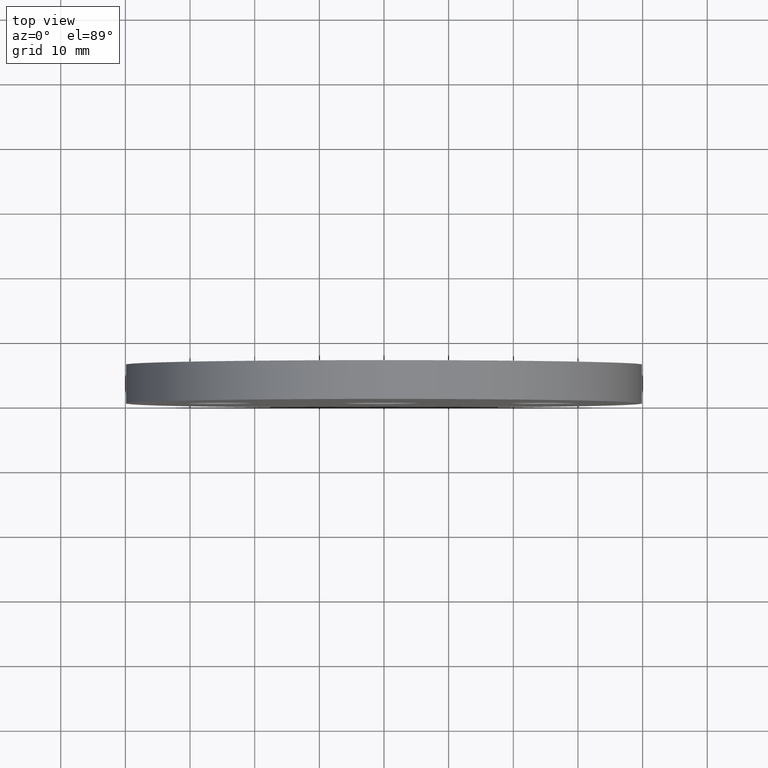
[diagram: clean part render]
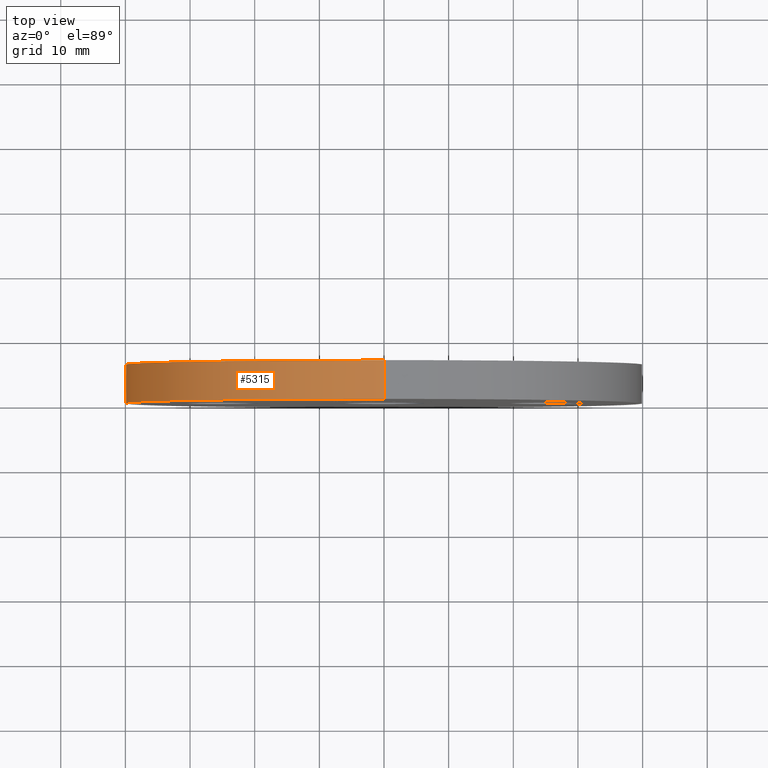
[diagram: same view with one face highlighted and labeled with its STEP entity id]
A machine part, top view. The second image highlights one B-rep face of the part: STEP entity #5315.
In plain terms, the highlighted cylindrical surface (partial cylindrical patch) has radius 40 mm, axis along (-0, -1, -0).
Its self-contained STEP definition (entity closure, byte-faithful):
#169 = DIRECTION ( 'NONE',  ( -0.0000000000000000000, -1.000000000000000000, -0.0000000000000000000 ) ) ;
#249 = CIRCLE ( 'NONE', #12444, 40.00000000000000000 ) ;
#324 = DIRECTION ( 'NONE',  ( -0.0000000000000000000, -1.000000000000000000, -0.0000000000000000000 ) ) ;
#823 = EDGE_CURVE ( 'NONE', #11749, #12769, #4870, .T. ) ;
#1136 = CIRCLE ( 'NONE', #7029, 40.00000000000000000 ) ;
#1496 = DIRECTION ( 'NONE',  ( 0.0000000000000000000, 0.0000000000000000000, -1.000000000000000000 ) ) ;
#1571 = EDGE_CURVE ( 'NONE', #2105, #12769, #1136, .T. ) ;
#2094 = ORIENTED_EDGE ( 'NONE', *, *, #1571, .T. ) ;
#2105 = VERTEX_POINT ( 'NONE', #5986 ) ;
#3895 = CYLINDRICAL_SURFACE ( 'NONE', #4485, 40.00000000000000000 ) ;
#4125 = VERTEX_POINT ( 'NONE', #11720 ) ;
#4210 = FACE_OUTER_BOUND ( 'NONE', #10066, .T. ) ;
#4213 = CARTESIAN_POINT ( 'NONE',  ( 4.898587196589413000E-015, 0.0000000000000000000, 40.00000000000000000 ) ) ;
#4479 = CARTESIAN_POINT ( 'NONE',  ( 4.898587196589413000E-015, 6.000000000000000000, 40.00000000000000000 ) ) ;
#4485 = AXIS2_PLACEMENT_3D ( 'NONE', #6219, #324, #1496 ) ;
#4800 = DIRECTION ( 'NONE',  ( 0.0000000000000000000, 1.000000000000000000, 0.0000000000000000000 ) ) ;
#4870 = LINE ( 'NONE', #11885, #9351 ) ;
#5315 = ADVANCED_FACE ( 'NONE', ( #4210 ), #3895, .T. ) ;
#5986 = CARTESIAN_POINT ( 'NONE',  ( 0.0000000000000000000, 0.0000000000000000000, -40.00000000000000000 ) ) ;
#6219 = CARTESIAN_POINT ( 'NONE',  ( 0.0000000000000000000, 6.000000000000000000, 0.0000000000000000000 ) ) ;
#6863 = DIRECTION ( 'NONE',  ( -0.0000000000000000000, -1.000000000000000000, -0.0000000000000000000 ) ) ;
#7029 = AXIS2_PLACEMENT_3D ( 'NONE', #8684, #11602, #10795 ) ;
#7650 = EDGE_CURVE ( 'NONE', #4125, #2105, #9884, .T. ) ;
#8171 = CARTESIAN_POINT ( 'NONE',  ( 0.0000000000000000000, 6.000000000000000000, -40.00000000000000000 ) ) ;
#8684 = CARTESIAN_POINT ( 'NONE',  ( 0.0000000000000000000, 0.0000000000000000000, 0.0000000000000000000 ) ) ;
#9351 = VECTOR ( 'NONE', #6863, 1000.000000000000000 ) ;
#9652 = CARTESIAN_POINT ( 'NONE',  ( 0.0000000000000000000, 6.000000000000000000, 0.0000000000000000000 ) ) ;
#9884 = LINE ( 'NONE', #8171, #10656 ) ;
#9940 = ORIENTED_EDGE ( 'NONE', *, *, #12278, .F. ) ;
#10066 = EDGE_LOOP ( 'NONE', ( #10634, #9940, #11585, #2094 ) ) ;
#10634 = ORIENTED_EDGE ( 'NONE', *, *, #823, .F. ) ;
#10656 = VECTOR ( 'NONE', #169, 1000.000000000000000 ) ;
#10795 = DIRECTION ( 'NONE',  ( 0.0000000000000000000, 0.0000000000000000000, 1.000000000000000000 ) ) ;
#11585 = ORIENTED_EDGE ( 'NONE', *, *, #7650, .T. ) ;
#11602 = DIRECTION ( 'NONE',  ( 0.0000000000000000000, 1.000000000000000000, 0.0000000000000000000 ) ) ;
#11645 = DIRECTION ( 'NONE',  ( 0.0000000000000000000, 0.0000000000000000000, 1.000000000000000000 ) ) ;
#11720 = CARTESIAN_POINT ( 'NONE',  ( 0.0000000000000000000, 6.000000000000000000, -40.00000000000000000 ) ) ;
#11749 = VERTEX_POINT ( 'NONE', #4479 ) ;
#11885 = CARTESIAN_POINT ( 'NONE',  ( 4.898587196589413000E-015, 6.000000000000000000, 40.00000000000000000 ) ) ;
#12278 = EDGE_CURVE ( 'NONE', #4125, #11749, #249, .T. ) ;
#12444 = AXIS2_PLACEMENT_3D ( 'NONE', #9652, #4800, #11645 ) ;
#12769 = VERTEX_POINT ( 'NONE', #4213 ) ;